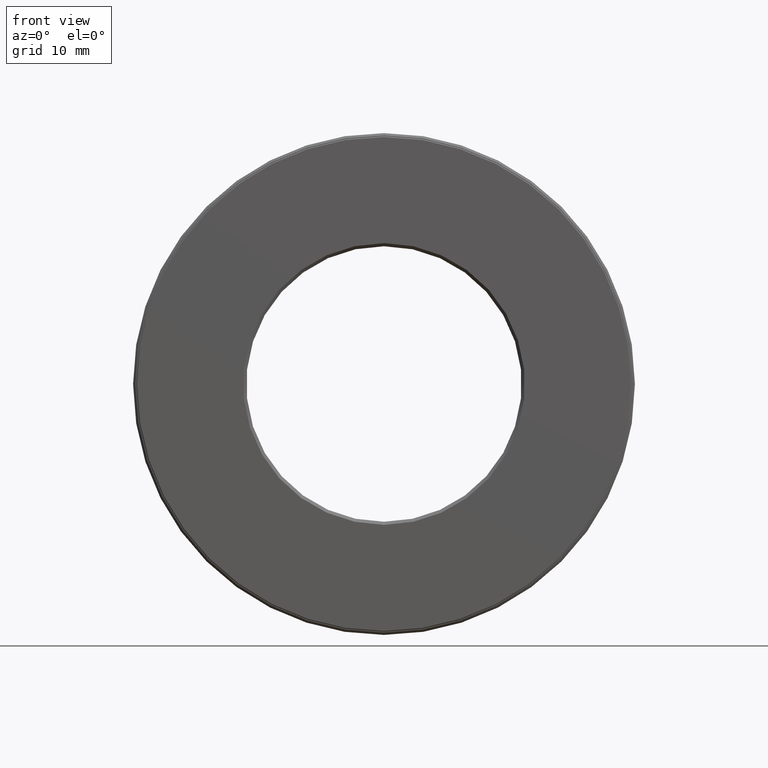
[diagram: clean part render]
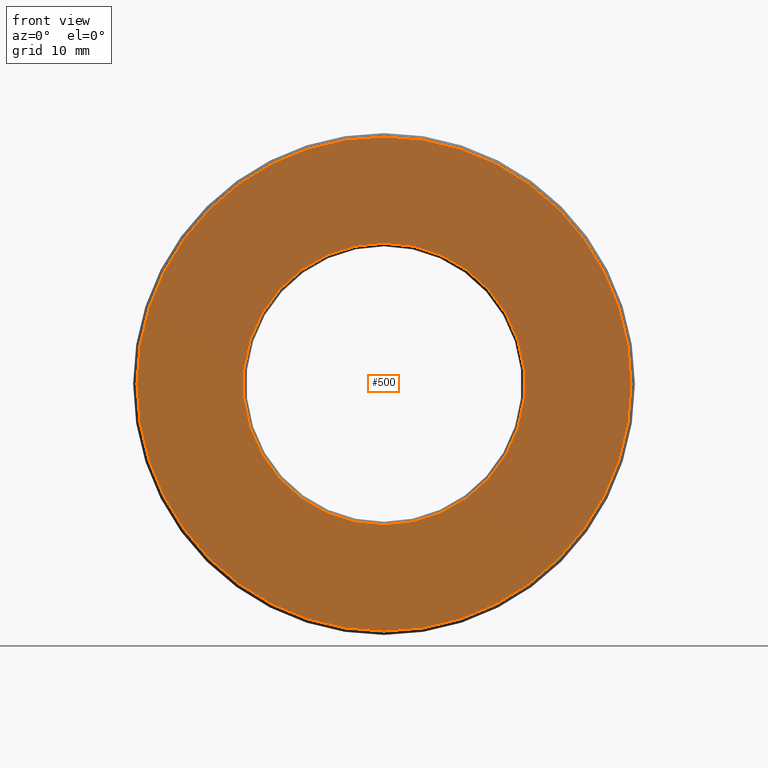
[diagram: same view with one face highlighted and labeled with its STEP entity id]
A machine part, front view. The second image highlights one B-rep face of the part: STEP entity #500.
In plain terms, the highlighted planar face has unit normal (-0, 1, 0).
Its self-contained STEP definition (entity closure, byte-faithful):
#9 = ORIENTED_EDGE ( 'NONE', *, *, #231, .F. ) ;
#22 = EDGE_LOOP ( 'NONE', ( #9 ) ) ;
#26 = CARTESIAN_POINT ( 'NONE',  ( -8.911272171840075800E-033, 6.882976390286913400E-017, 0.0000000000000000000 ) ) ;
#84 = FACE_OUTER_BOUND ( 'NONE', #22, .T. ) ;
#98 = DIRECTION ( 'NONE',  ( -0.0000000000000000000, 1.000000000000000000, -0.0000000000000000000 ) ) ;
#101 = VERTEX_POINT ( 'NONE', #467 ) ;
#103 = DIRECTION ( 'NONE',  ( 0.0000000000000000000, 0.0000000000000000000, 1.000000000000000000 ) ) ;
#109 = EDGE_LOOP ( 'NONE', ( #230 ) ) ;
#113 = FACE_BOUND ( 'NONE', #109, .T. ) ;
#151 = EDGE_CURVE ( 'NONE', #101, #101, #348, .T. ) ;
#208 = PLANE ( 'NONE',  #283 ) ;
#225 = DIRECTION ( 'NONE',  ( -0.0000000000000000000, 1.000000000000000000, -0.0000000000000000000 ) ) ;
#230 = ORIENTED_EDGE ( 'NONE', *, *, #151, .T. ) ;
#231 = EDGE_CURVE ( 'NONE', #593, #593, #407, .T. ) ;
#235 = CARTESIAN_POINT ( 'NONE',  ( 0.0000000000000000000, -6.722907171908147400E-017, 0.0000000000000000000 ) ) ;
#261 = DIRECTION ( 'NONE',  ( 0.0000000000000000000, 0.0000000000000000000, 1.000000000000000000 ) ) ;
#283 = AXIS2_PLACEMENT_3D ( 'NONE', #26, #588, #261 ) ;
#293 = AXIS2_PLACEMENT_3D ( 'NONE', #597, #225, #419 ) ;
#348 = CIRCLE ( 'NONE', #293, 0.8950000000000001300 ) ;
#400 = AXIS2_PLACEMENT_3D ( 'NONE', #235, #98, #103 ) ;
#407 = CIRCLE ( 'NONE', #400, 1.568749999999999400 ) ;
#419 = DIRECTION ( 'NONE',  ( 0.0000000000000000000, 0.0000000000000000000, 1.000000000000000000 ) ) ;
#467 = CARTESIAN_POINT ( 'NONE',  ( 0.0000000000000000000, 2.048885995248197400E-016, 0.8950000000000001300 ) ) ;
#500 = ADVANCED_FACE ( 'NONE', ( #84, #113 ), #208, .F. ) ;
#512 = CARTESIAN_POINT ( 'NONE',  ( 0.0000000000000000000, -6.722907171908147400E-017, 1.568749999999999400 ) ) ;
#588 = DIRECTION ( 'NONE',  ( -0.0000000000000000000, 1.000000000000000000, 0.0000000000000000000 ) ) ;
#593 = VERTEX_POINT ( 'NONE', #512 ) ;
#597 = CARTESIAN_POINT ( 'NONE',  ( 0.0000000000000000000, 2.048885995248197400E-016, 0.0000000000000000000 ) ) ;